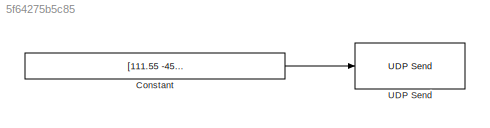
MODEL slx_5f64275b5c85
KIND model
BLOCK [Constant] Constant
  Value = [111.55 -45.98 0 25.36 55.555 -8.989]
BLOCK [Reference] UDP Send  REF=instrumentlib/UDP Send
  ByteOrder = BigEndian
  EnableBlockingMode = on
  Host = localhost
  LocalPort = 9091
  Port = 9090
  Ports = [1]
  SourceBlock = instrumentlib/UDP Send
  SourceType = UDP Send
LINE Constant:1 -> UDP Send:1
